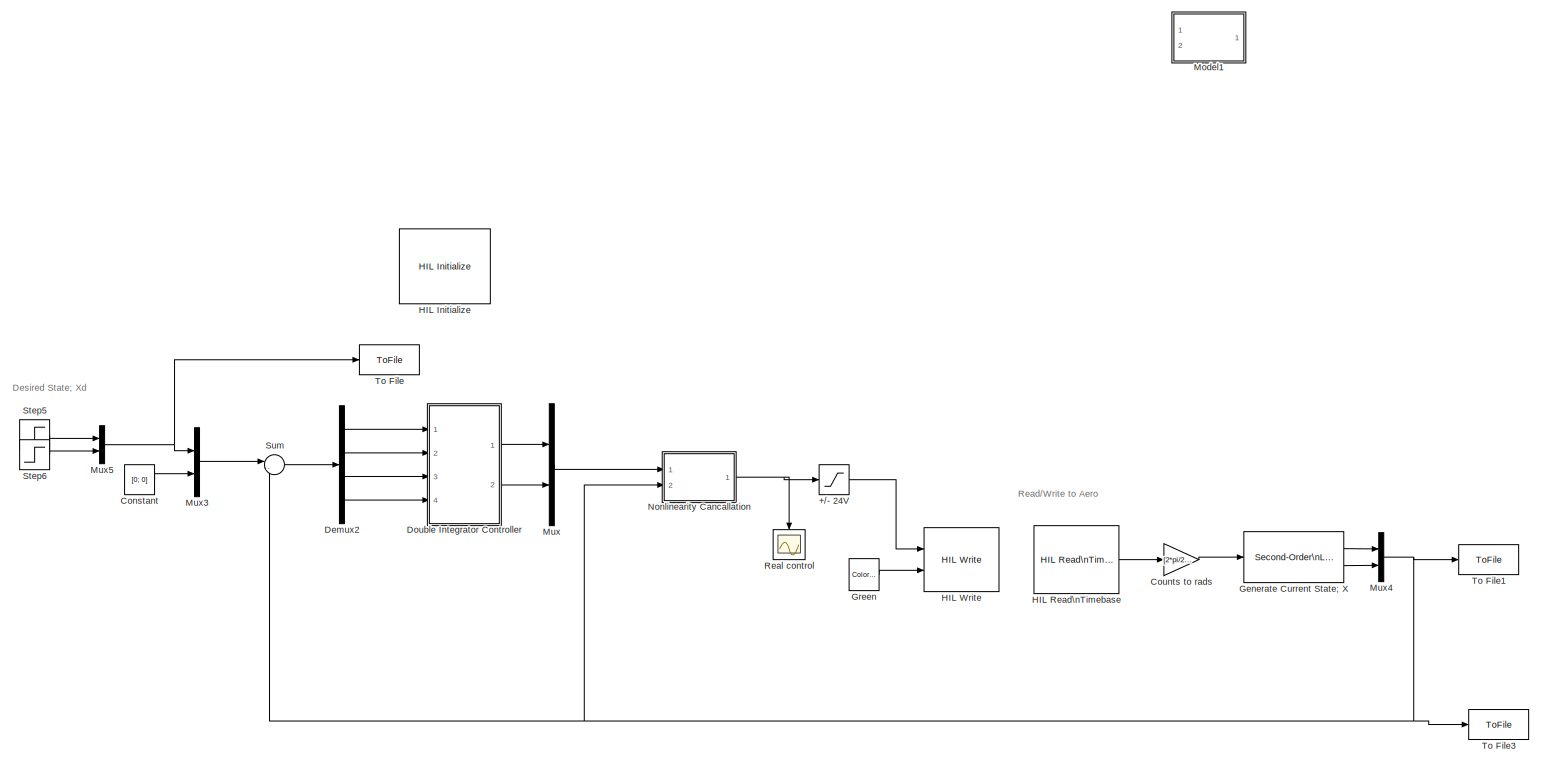
[diagram: root canvas - part 1/1, most of the canvas]
MODEL low_pass_filter
KIND model
CONFIG PreLoadFcn = quanser_aero_lqr
BLOCK [Saturate] +//- 24V
  LowerLimit = -24
  SID = 99
  UpperLimit = 24
BLOCK [Constant] Constant
  SID = 269
  Value = [0; 0]
BLOCK [Gain] Counts to rads
  Gain = [2*pi/2048 2*pi/4096]
  SID = 197
BLOCK [Demux] Demux2
  Ports = [1, 4]
  SID = 266
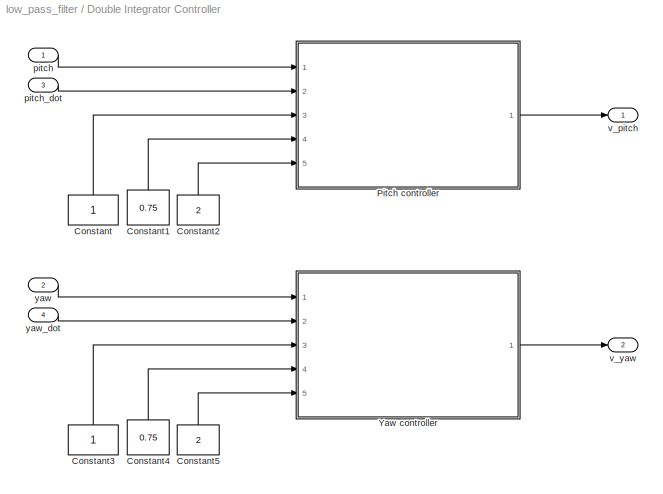
BLOCK [SubSystem] Double Integrator Controller
  Ports = [4, 2]
  RequestExecContextInheritance = off
  SID = 250
BLOCK [Constant] Double Integrator Controller/Constant
  NameLocation = right
  SID = 255
BLOCK [Constant] Double Integrator Controller/Constant1
  NameLocation = right
  SID = 256
  Value = 0.75
BLOCK [Constant] Double Integrator Controller/Constant2
  NameLocation = right
  SID = 257
  Value = 2
BLOCK [Constant] Double Integrator Controller/Constant3
  NameLocation = right
  SID = 258
BLOCK [Constant] Double Integrator Controller/Constant4
  NameLocation = right
  SID = 259
  Value = 0.75
BLOCK [Constant] Double Integrator Controller/Constant5
  NameLocation = right
  SID = 260
  Value = 2
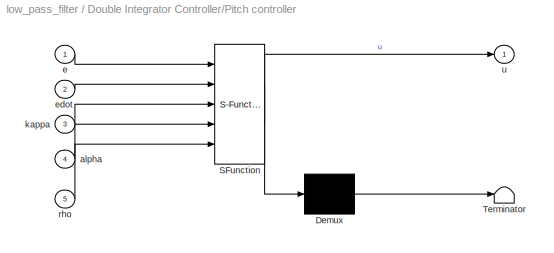
BLOCK [SubSystem] Double Integrator Controller/Pitch controller
  ErrorFcn = Stateflow.Translate.translate
  PermitHierarchicalResolution = ExplicitOnly
  Ports = [5, 1]
  RequestExecContextInheritance = off
  SFBlockType = MATLAB Function
  SID = 261
  TreatAsAtomicUnit = on
BLOCK [Demux] Double Integrator Controller/Pitch controller/ Demux 
  Outputs = 1
  Ports = [1, 1]
  SID = 261::33
BLOCK [S-Function] Double Integrator Controller/Pitch controller/ SFunction 
  EnableBusSupport = on
  FunctionName = sf_sfun
  PortCounts = [5 2]
  Ports = [5, 2]
  SFcnIsStateOwnerBlock = off
  SFunctionDeploymentMode = off
  SID = 261::32
  Tag = Stateflow S-Function 10
BLOCK [Terminator] Double Integrator Controller/Pitch controller/ Terminator 
  SID = 261::34
BLOCK [Inport] Double Integrator Controller/Pitch controller/alpha
  Port = 4
  SID = 261::30
BLOCK [Inport] Double Integrator Controller/Pitch controller/e
  SID = 261::1
BLOCK [Inport] Double Integrator Controller/Pitch controller/edot
  Port = 2
  SID = 261::28
BLOCK [Inport] Double Integrator Controller/Pitch controller/kappa
  Port = 3
  SID = 261::29
BLOCK [Inport] Double Integrator Controller/Pitch controller/rho
  Port = 5
  SID = 261::31
BLOCK [Outport] Double Integrator Controller/Pitch controller/u
  SID = 261::5
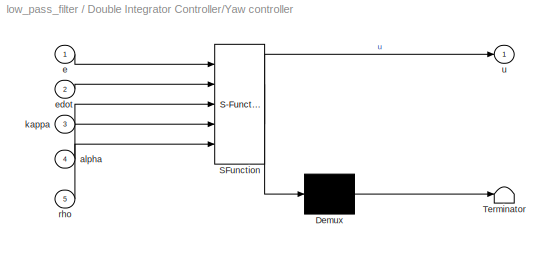
BLOCK [SubSystem] Double Integrator Controller/Yaw controller
  ErrorFcn = Stateflow.Translate.translate
  PermitHierarchicalResolution = ExplicitOnly
  Ports = [5, 1]
  RequestExecContextInheritance = off
  SFBlockType = MATLAB Function
  SID = 262
  TreatAsAtomicUnit = on
BLOCK [Demux] Double Integrator Controller/Yaw controller/ Demux 
  Outputs = 1
  Ports = [1, 1]
  SID = 262::33
BLOCK [S-Function] Double Integrator Controller/Yaw controller/ SFunction 
  EnableBusSupport = on
  FunctionName = sf_sfun
  PortCounts = [5 2]
  Ports = [5, 2]
  SFcnIsStateOwnerBlock = off
  SFunctionDeploymentMode = off
  SID = 262::32
  Tag = Stateflow S-Function 5
BLOCK [Terminator] Double Integrator Controller/Yaw controller/ Terminator 
  SID = 262::34
BLOCK [Inport] Double Integrator Controller/Yaw controller/alpha
  Port = 4
  SID = 262::30
BLOCK [Inport] Double Integrator Controller/Yaw controller/e
  SID = 262::1
BLOCK [Inport] Double Integrator Controller/Yaw controller/edot
  Port = 2
  SID = 262::28
BLOCK [Inport] Double Integrator Controller/Yaw controller/kappa
  Port = 3
  SID = 262::29
BLOCK [Inport] Double Integrator Controller/Yaw controller/rho
  Port = 5
  SID = 262::31
BLOCK [Outport] Double Integrator Controller/Yaw controller/u
  SID = 262::5
BLOCK [Inport] Double Integrator Controller/pitch
  SID = 251
BLOCK [Inport] Double Integrator Controller/pitch_dot
  Port = 3
  SID = 253
BLOCK [Outport] Double Integrator Controller/v_pitch
  SID = 263
BLOCK [Outport] Double Integrator Controller/v_yaw
  Port = 2
  SID = 264
BLOCK [Inport] Double Integrator Controller/yaw
  Port = 2
  SID = 252
BLOCK [Inport] Double Integrator Controller/yaw_dot
  Port = 4
  SID = 254
BLOCK [Reference] Generate Current State; X  REF=quarc_library/Continuous/Second-Order\nLow-Pass Filter
  Ports = [1, 2]
  RTWMemSecDataConstants = Inherit from model
  RTWMemSecDataInternal = Inherit from model
  RTWMemSecDataParameters = Inherit from model
  RTWMemSecFuncExecute = Inherit from model
  RTWMemSecFuncInitTerm = Inherit from model
  SID = 213
  SourceBlock = quarc_library/Continuous/Second-Order\nLow-Pass Filter
  SourceProductName = QUARC Targets
  SourceType = Second-Order Low-Pass Filter
  input_init = 0
  input_width = 50
  input_zeta = 0.8
  params_source = Internal (dialog parameters)
BLOCK [Reference] Green  REF=quarc_library/Sources/Signals/Color Constant
  Ports = [0, 1]
  RTWMemSecDataConstants = Inherit from model
  RTWMemSecDataInternal = Inherit from model
  RTWMemSecDataParameters = Inherit from model
  RTWMemSecFuncExecute = Inherit from model
  RTWMemSecFuncInitTerm = Inherit from model
  SID = 194
  SourceBlock = quarc_library/Sources/Signals/Color Constant
  SourceProductName = QUARC Targets
  SourceType = Color Constant
  color = [0 1 0]
BLOCK [Reference] HIL Initialize  REF=quarc_library/Data Acquisition/Generic/Configuration/HIL Initialize
  AttributesFormatString = %<object_name> (%<board_type>-%<board_number>)
  MultiThreadCoSim = auto
  Ports = []
  Priority = -99
  SID = 185
  SourceBlock = quarc_library/Data Acquisition/Generic/Configuration/HIL Initialize
  SourceProductName = QUARC Targets
  SourceType = HIL Initialize
  UserData = DataTag0
  UserDataPersistent = on
  active = off
  analog_input_channels = [0:1]
  analog_input_configurations = []
  analog_input_maximums = 3
  analog_input_minimums = -3
  analog_output_channels = [0:1]
  analog_output_maximums = 24
  analog_output_minimums = -24
  board_number = 0
  board_type = quanser_aero_usb
  clock_modes = []
  digital_input_channels = []
  digital_output_channels = [0:1]
  digital_output_configuration = []
  encoder_channels = [0:3]
  encoder_filter_frequency = []
  exclusive = off
  final_analog_outputs = [0]
  final_digital_outputs = [0]
  final_other_outputs = [1 0 0]
  final_pwm_outputs = []
  hardware_clocks = [0]
  initial_analog_outputs = [0]
  initial_clock_frequencies = []
  initial_digital_outputs = [1]
  initial_encoder_counts = [0]
  initial_other_outputs = [0 1 0]
  initial_pwm_outputs = []
  object_name = HIL-1
  other_output_channels = [11000:11002]
  pwm_alignment = []
  pwm_channels = []
  pwm_configuration = []
  pwm_frequency = []
  pwm_leading_deadband = []
  pwm_modes = []
  pwm_polarity = []
  pwm_trailing_deadband = []
  quadrature = [4]
  set_analog_input_params_at_start = off
  set_analog_input_params_at_switch_in = off
  set_analog_output_params_at_start = off
  set_analog_output_params_at_switch_in = off
  set_analog_outputs_at_start = on
  set_analog_outputs_at_switch_in = off
  set_analog_outputs_at_switch_out = off
  set_analog_outputs_at_terminate = on
  set_analog_outputs_on_watchdog = on
  set_clock_frequencies_at_start = off
  set_clock_frequencies_at_switch_in = off
  set_clock_params_at_start = off
  set_clock_params_at_switch_in = off
  set_digital_output_params_at_start = off
  set_digital_output_params_at_switch_in = off
  set_digital_outputs_at_start = on
  set_digital_outputs_at_switch_in = off
  set_digital_outputs_at_switch_out = off
  set_digital_outputs_at_terminate = on
  set_digital_outputs_on_watchdog = on
  set_encoder_counts_at_start = on
  set_encoder_counts_at_switch_in = off
  set_encoder_params_at_start = off
  set_encoder_params_at_switch_in = off
  set_other_outputs_at_start = on
  set_other_outputs_at_switch_in = off
  set_other_outputs_at_switch_out = off
  set_other_outputs_at_terminate = on
  set_other_outputs_on_watchdog = on
  set_pwm_outputs_at_start = off
  set_pwm_outputs_at_switch_in = off
  set_pwm_outputs_at_switch_out = off
  set_pwm_outputs_at_terminate = off
  set_pwm_outputs_on_watchdog = off
  set_pwm_params_at_start = off
  set_pwm_params_at_switch_in = off
  watchdog_analog_outputs = [0]
  watchdog_digital_outputs = [0]
  watchdog_other_outputs = [0 0 1]
  watchdog_pwm_outputs = []
BLOCK [Reference] HIL Read\nTimebase  REF=quarc_library/Data Acquisition/Generic/Timebases/HIL Read\nTimebase
  AttributesFormatString = (%<object_name>)
  MultiThreadCoSim = auto
  Ports = [0, 3]
  SID = 186
  SourceBlock = quarc_library/Data Acquisition/Generic/Timebases/HIL Read\nTimebase
  SourceProductName = QUARC Targets
  SourceType = HIL Read Timebase
  UserData = DataTag1
  UserDataPersistent = on
  active = on
  analog_channels = [0:1]
  clock = 0
  data_type_mode = Inherit via back propagation
  digital_channels = []
  digital_data_type = boolean
  encoder_channels = [2:3]
  encoder_data_type = double
  object_name = HIL-1
  other_channels = [4000 4002 14000 14001]
  overflow_mode = Error on overflow
  samples_in_buffer = max(ceil(1/qc_get_step_size), 1)
  vector_output = on
BLOCK [Reference] HIL Write  REF=quarc_library/Data Acquisition/Generic/Immediate I//O/HIL Write
  AttributesFormatString = (%<object_name>)
  MultiThreadCoSim = auto
  Ports = [2]
  SID = 187
  SourceBlock = quarc_library/Data Acquisition/Generic/Immediate I//O/HIL Write
  SourceProductName = QUARC Targets
  SourceType = HIL Write
  UserData = DataTag2
  UserDataPersistent = on
  active = off
  analog_channels = [0:1]
  digital_channels = []
  object_name = HIL-1
  other_channels = [11000:11002]
  pwm_channels = []
  sample_time = -1
  vector_input = on
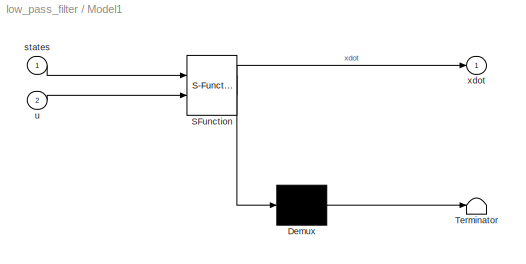
BLOCK [SubSystem] Model1
  Commented = on
  ErrorFcn = Stateflow.Translate.translate
  PermitHierarchicalResolution = ExplicitOnly
  Ports = [2, 1]
  RequestExecContextInheritance = off
  SFBlockType = MATLAB Function
  SID = 237
  TreatAsAtomicUnit = on
BLOCK [Demux] Model1/ Demux 
  Outputs = 1
  Ports = [1, 1]
  SID = 237::23
BLOCK [S-Function] Model1/ SFunction 
  EnableBusSupport = on
  FunctionName = sf_sfun
  PortCounts = [2 2]
  Ports = [2, 2]
  SFcnIsStateOwnerBlock = off
  SFunctionDeploymentMode = off
  SID = 237::22
  Tag = Stateflow S-Function 3
BLOCK [Terminator] Model1/ Terminator 
  SID = 237::24
BLOCK [Inport] Model1/states
  SID = 237::25
BLOCK [Inport] Model1/u
  Port = 2
  SID = 237::1
BLOCK [Outport] Model1/xdot
  SID = 237::5
BLOCK [Mux] Mux
  DisplayOption = bar
  Inputs = 2
  Ports = [2, 1]
  SID = 245
BLOCK [Mux] Mux3
  DisplayOption = bar
  Inputs = 2
  Ports = [2, 1]
  SID = 270
BLOCK [Mux] Mux4
  DisplayOption = bar
  Inputs = 2
  Ports = [2, 1]
  SID = 214
BLOCK [Mux] Mux5
  DisplayOption = bar
  Inputs = 2
  Ports = [2, 1]
  SID = 319
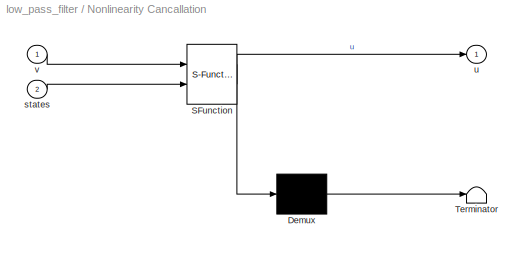
BLOCK [SubSystem] Nonlinearity Cancallation
  ErrorFcn = Stateflow.Translate.translate
  PermitHierarchicalResolution = ExplicitOnly
  Ports = [2, 1]
  RequestExecContextInheritance = off
  SFBlockType = MATLAB Function
  SID = 244
  TreatAsAtomicUnit = on
BLOCK [Demux] Nonlinearity Cancallation/ Demux 
  Outputs = 1
  Ports = [1, 1]
  SID = 244::23
BLOCK [S-Function] Nonlinearity Cancallation/ SFunction 
  EnableBusSupport = on
  FunctionName = sf_sfun
  PortCounts = [2 2]
  Ports = [2, 2]
  SFcnIsStateOwnerBlock = off
  SFunctionDeploymentMode = off
  SID = 244::22
  Tag = Stateflow S-Function 4
BLOCK [Terminator] Nonlinearity Cancallation/ Terminator 
  SID = 244::24
BLOCK [Inport] Nonlinearity Cancallation/states
  Port = 2
  SID = 244::25
BLOCK [Outport] Nonlinearity Cancallation/u
  SID = 244::5
BLOCK [Inport] Nonlinearity Cancallation/v
  SID = 244::1
BLOCK [Scope] Real control
  Floating = off
  NameLocation = left
  NumInputPorts = 1
  Ports = [1]
  SID = 278
  ScopeSpecificationString = Simulink.scopes.TimeScopeBlockCfg('CurrentConfiguration', extmgr.ConfigurationSet(extmgr.Configuration('Core','General UI',true),extmgr.Configuration('Core','Source UI',true),extmgr.Configuration('Sources','WiredSimulink',true,'DataLoggingVariableName','ScopeData2'),extmgr.Configuration('Visuals','Time Domain',true,'SerializedDisplays',{struct('MinYLimReal','-21.10304','MaxYLimReal','20.60711','YL...<+1523ch>
BLOCK [Step] Step5
  After = pi/6
  SID = 329
  SampleTime = 0
  Time = 5
BLOCK [Step] Step6
  After = pi/4
  SID = 330
  SampleTime = 0
  Time = 5
BLOCK [Sum] Sum
  Inputs = |-+
  Ports = [2, 1]
  SID = 265
BLOCK [ToFile] To File
  Filename = reference.mat
  Ports = [1]
  SID = 273
BLOCK [ToFile] To File1
  Filename = low_pass_estimates.mat
  MatrixName = low_pass_estimates
  Ports = [1]
  SID = 370
BLOCK [ToFile] To File3
  Filename = measurements.mat
  Ports = [1]
  SID = 276
ANNOTATION (root): Desired State; Xd
ANNOTATION (root): Read/Write to Aero
LINE +//- 24V:1 -> HIL Write:1
LINE Constant:1 -> Mux3:2
LINE Counts to rads:1 -> Generate Current State; X:1
LINE Demux2:1 -> Double Integrator Controller:1
LINE Demux2:2 -> Double Integrator Controller:2
LINE Demux2:3 -> Double Integrator Controller:3
LINE Demux2:4 -> Double Integrator Controller:4
LINE Double Integrator Controller/Constant1:1 -> Double Integrator Controller/Pitch controller:4
LINE Double Integrator Controller/Constant2:1 -> Double Integrator Controller/Pitch controller:5
LINE Double Integrator Controller/Constant3:1 -> Double Integrator Controller/Yaw controller:3
LINE Double Integrator Controller/Constant4:1 -> Double Integrator Controller/Yaw controller:4
LINE Double Integrator Controller/Constant5:1 -> Double Integrator Controller/Yaw controller:5
LINE Double Integrator Controller/Constant:1 -> Double Integrator Controller/Pitch controller:3
LINE Double Integrator Controller/Pitch controller/ Demux :1 -> Double Integrator Controller/Pitch controller/ Terminator :1
LINE Double Integrator Controller/Pitch controller/ SFunction :1 -> Double Integrator Controller/Pitch controller/ Demux :1
LINE Double Integrator Controller/Pitch controller/ SFunction :2 -> Double Integrator Controller/Pitch controller/u:1
LINE Double Integrator Controller/Pitch controller/alpha:1 -> Double Integrator Controller/Pitch controller/ SFunction :4
LINE Double Integrator Controller/Pitch controller/e:1 -> Double Integrator Controller/Pitch controller/ SFunction :1
LINE Double Integrator Controller/Pitch controller/edot:1 -> Double Integrator Controller/Pitch controller/ SFunction :2
LINE Double Integrator Controller/Pitch controller/kappa:1 -> Double Integrator Controller/Pitch controller/ SFunction :3
LINE Double Integrator Controller/Pitch controller/rho:1 -> Double Integrator Controller/Pitch controller/ SFunction :5
LINE Double Integrator Controller/Pitch controller:1 -> Double Integrator Controller/v_pitch:1
LINE Double Integrator Controller/Yaw controller/ Demux :1 -> Double Integrator Controller/Yaw controller/ Terminator :1
LINE Double Integrator Controller/Yaw controller/ SFunction :1 -> Double Integrator Controller/Yaw controller/ Demux :1
LINE Double Integrator Controller/Yaw controller/ SFunction :2 -> Double Integrator Controller/Yaw controller/u:1
LINE Double Integrator Controller/Yaw controller/alpha:1 -> Double Integrator Controller/Yaw controller/ SFunction :4
LINE Double Integrator Controller/Yaw controller/e:1 -> Double Integrator Controller/Yaw controller/ SFunction :1
LINE Double Integrator Controller/Yaw controller/edot:1 -> Double Integrator Controller/Yaw controller/ SFunction :2
LINE Double Integrator Controller/Yaw controller/kappa:1 -> Double Integrator Controller/Yaw controller/ SFunction :3
LINE Double Integrator Controller/Yaw controller/rho:1 -> Double Integrator Controller/Yaw controller/ SFunction :5
LINE Double Integrator Controller/Yaw controller:1 -> Double Integrator Controller/v_yaw:1
LINE Double Integrator Controller/pitch:1 -> Double Integrator Controller/Pitch controller:1
LINE Double Integrator Controller/pitch_dot:1 -> Double Integrator Controller/Pitch controller:2
LINE Double Integrator Controller/yaw:1 -> Double Integrator Controller/Yaw controller:1
LINE Double Integrator Controller/yaw_dot:1 -> Double Integrator Controller/Yaw controller:2
LINE Double Integrator Controller:1 -> Mux:1
LINE Double Integrator Controller:2 -> Mux:2
LINE Generate Current State; X:1 -> Mux4:1
LINE Generate Current State; X:2 -> Mux4:2
LINE Green:1 -> HIL Write:2
LINE HIL Read\nTimebase:2 -> Counts to rads:1
LINE Model1/ Demux :1 -> Model1/ Terminator :1
LINE Model1/ SFunction :1 -> Model1/ Demux :1
LINE Model1/ SFunction :2 -> Model1/xdot:1
LINE Model1/states:1 -> Model1/ SFunction :1
LINE Model1/u:1 -> Model1/ SFunction :2
LINE Mux3:1 -> Sum:1
NET Mux4:1 -> Nonlinearity Cancallation:2, Sum:2, To File1:1, To File3:1
NET Mux5:1 -> Mux3:1, To File:1
LINE Mux:1 -> Nonlinearity Cancallation:1
LINE Nonlinearity Cancallation/ Demux :1 -> Nonlinearity Cancallation/ Terminator :1
LINE Nonlinearity Cancallation/ SFunction :1 -> Nonlinearity Cancallation/ Demux :1
LINE Nonlinearity Cancallation/ SFunction :2 -> Nonlinearity Cancallation/u:1
LINE Nonlinearity Cancallation/states:1 -> Nonlinearity Cancallation/ SFunction :2
LINE Nonlinearity Cancallation/v:1 -> Nonlinearity Cancallation/ SFunction :1
NET Nonlinearity Cancallation:1 -> +//- 24V:1, Real control:1
LINE Step5:1 -> Mux5:1
LINE Step6:1 -> Mux5:2
LINE Sum:1 -> Demux2:1
note: NET lines group one-source signal fan-out (src -> all destinations, sorted); 1:1 wires keep LINE
CHART Model1 states=1 transitions=1
  STATE_LABEL 'eML_blk_kernel()'
CHART Nonlinearity Cancallation states=1 transitions=1
  STATE_LABEL 'eML_blk_kernel()'
CHART Double Integrator Controller/Yaw controller states=1 transitions=1
  STATE_LABEL 'eML_blk_kernel()'
CHART Double Integrator Controller/Pitch controller states=1 transitions=1
  STATE_LABEL 'eML_blk_kernel()'
